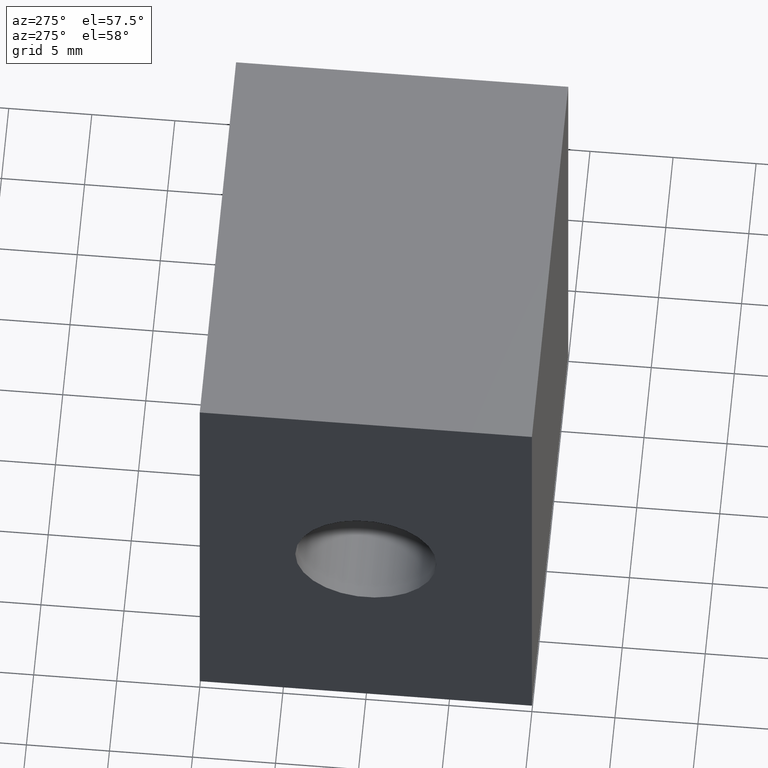
[diagram: clean part render]
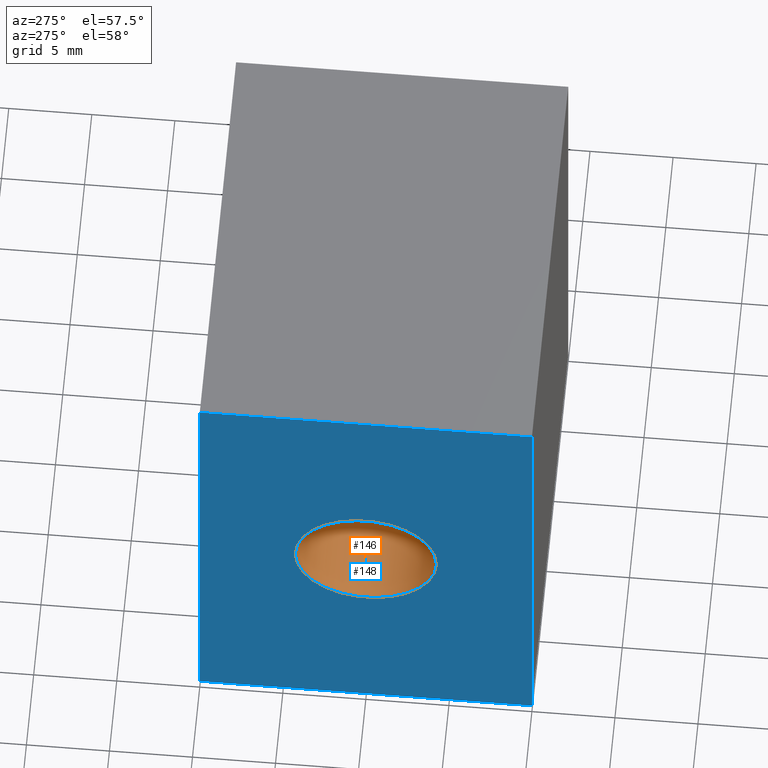
[diagram: same view with the hole feature highlighted: cylindrical wall and planar end face, labeled with their STEP entity ids]
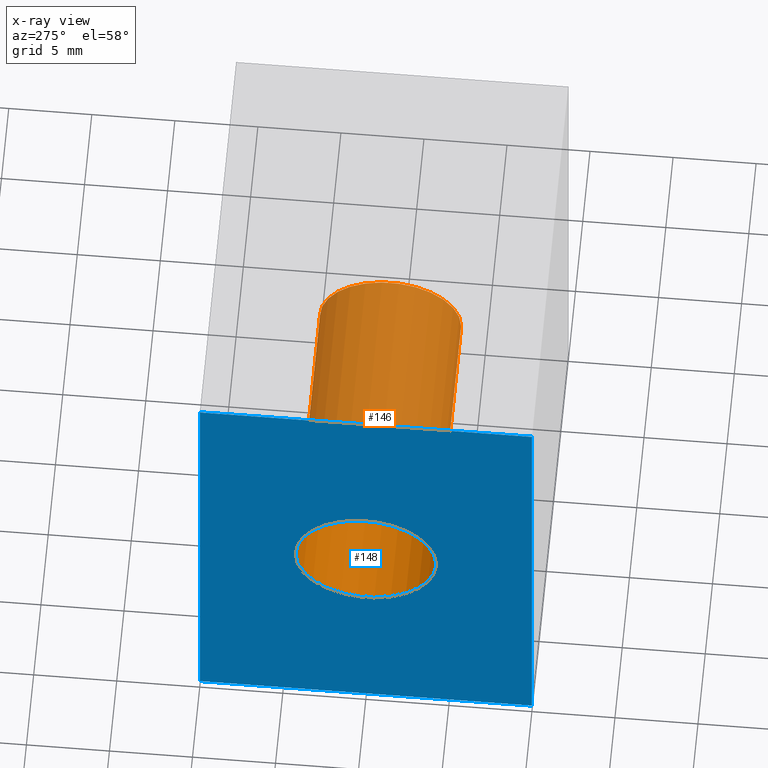
[diagram: x-ray of the same camera — body ghosted, the hole faces saturated]
A machine part, auxiliary view. The highlighted faces form one hole feature of diameter 8.5 mm: the cylindrical wall (entity #146, orange) and its adjacent planar end face (entity #148, blue) — they share a circular edge in the B-rep.
The next image is the same camera in x-ray (body ghosted, the hole faces saturated) — the bore reads through the body.
Wall:
#25=FACE_OUTER_BOUND('',#34,.T.);
#34=EDGE_LOOP('',(#108,#109,#110,#111));
#46=LINE('',#238,#60);
#60=VECTOR('',#197,4.25);
#74=CIRCLE('',#179,4.25);
#75=CIRCLE('',#180,4.25);
#78=VERTEX_POINT('',#235);
#79=VERTEX_POINT('',#237);
#90=EDGE_CURVE('',#78,#78,#74,.T.);
#91=EDGE_CURVE('',#78,#79,#46,.T.);
#92=EDGE_CURVE('',#79,#79,#75,.T.);
#108=ORIENTED_EDGE('',*,*,#90,.F.);
#109=ORIENTED_EDGE('',*,*,#91,.T.);
#110=ORIENTED_EDGE('',*,*,#92,.T.);
#111=ORIENTED_EDGE('',*,*,#91,.F.);
#144=CYLINDRICAL_SURFACE('',#178,4.25);
#146=ADVANCED_FACE('',(#25),#144,.F.);
#178=AXIS2_PLACEMENT_3D('',#234,#193,#194);
#179=AXIS2_PLACEMENT_3D('',#236,#195,#196);
#180=AXIS2_PLACEMENT_3D('',#239,#198,#199);
#193=DIRECTION('center_axis',(-1.,0.,0.));
#194=DIRECTION('ref_axis',(0.,-1.,0.));
#195=DIRECTION('center_axis',(-1.,0.,0.));
#196=DIRECTION('ref_axis',(0.,0.,1.));
#197=DIRECTION('',(-1.,0.,0.));
#198=DIRECTION('center_axis',(-1.,0.,0.));
#199=DIRECTION('ref_axis',(0.,0.,1.));
#234=CARTESIAN_POINT('Origin',(-7.99999999000001,1.776357E-15,0.));
#235=CARTESIAN_POINT('',(-8.00000000000001,4.25,-5.20474889637625E-16));
#236=CARTESIAN_POINT('Origin',(-8.00000000000001,3.552714E-15,0.));
#237=CARTESIAN_POINT('',(-25.,4.25,-5.20474889637625E-16));
#238=CARTESIAN_POINT('',(-7.99999999000001,4.25,-5.20474889637625E-16));
#239=CARTESIAN_POINT('Origin',(-25.,3.552714E-15,0.));
End face:
#15=FACE_BOUND('',#37,.T.);
#18=PLANE('',#184);
#27=FACE_OUTER_BOUND('',#36,.T.);
#36=EDGE_LOOP('',(#116,#117,#118,#119));
#37=EDGE_LOOP('',(#120));
#48=LINE('',#249,#62);
#49=LINE('',#251,#63);
#50=LINE('',#253,#64);
#51=LINE('',#254,#65);
#62=VECTOR('',#209,20.);
#63=VECTOR('',#210,30.);
#64=VECTOR('',#211,20.);
#65=VECTOR('',#212,30.);
#75=CIRCLE('',#180,4.25);
#79=VERTEX_POINT('',#237);
#82=VERTEX_POINT('',#247);
#83=VERTEX_POINT('',#248);
#84=VERTEX_POINT('',#250);
#85=VERTEX_POINT('',#252);
#92=EDGE_CURVE('',#79,#79,#75,.T.);
#96=EDGE_CURVE('',#82,#83,#48,.T.);
#97=EDGE_CURVE('',#84,#82,#49,.T.);
#98=EDGE_CURVE('',#84,#85,#50,.T.);
#99=EDGE_CURVE('',#85,#83,#51,.T.);
#116=ORIENTED_EDGE('',*,*,#96,.F.);
#117=ORIENTED_EDGE('',*,*,#97,.F.);
#118=ORIENTED_EDGE('',*,*,#98,.T.);
#119=ORIENTED_EDGE('',*,*,#99,.T.);
#120=ORIENTED_EDGE('',*,*,#92,.F.);
#148=ADVANCED_FACE('',(#27,#15),#18,.T.);
#180=AXIS2_PLACEMENT_3D('',#239,#198,#199);
#184=AXIS2_PLACEMENT_3D('',#246,#207,#208);
#198=DIRECTION('center_axis',(-1.,0.,0.));
#199=DIRECTION('ref_axis',(0.,0.,1.));
#207=DIRECTION('center_axis',(-1.,0.,0.));
#208=DIRECTION('ref_axis',(0.,0.,1.));
#209=DIRECTION('',(0.,-1.,0.));
#210=DIRECTION('',(0.,0.,1.));
#211=DIRECTION('',(0.,-1.,0.));
#212=DIRECTION('',(0.,0.,1.));
#237=CARTESIAN_POINT('',(-25.,4.25,-5.20474889637625E-16));
#239=CARTESIAN_POINT('Origin',(-25.,3.552714E-15,0.));
#246=CARTESIAN_POINT('Origin',(-25.,-11.,-16.5));
#247=CARTESIAN_POINT('',(-25.,10.,15.));
#248=CARTESIAN_POINT('',(-25.,-10.,15.));
#249=CARTESIAN_POINT('',(-25.,10.,15.));
#250=CARTESIAN_POINT('',(-25.,10.,-15.));
#251=CARTESIAN_POINT('',(-25.,10.,-15.));
#252=CARTESIAN_POINT('',(-25.,-10.,-15.));
#253=CARTESIAN_POINT('',(-25.,10.,-15.));
#254=CARTESIAN_POINT('',(-25.,-10.,-15.));